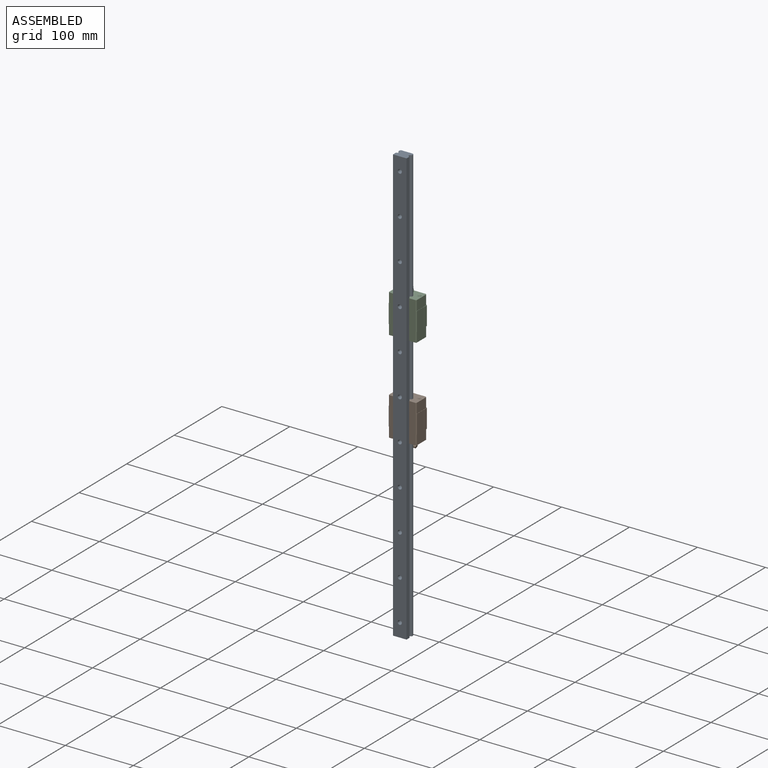
[diagram: assembled view]
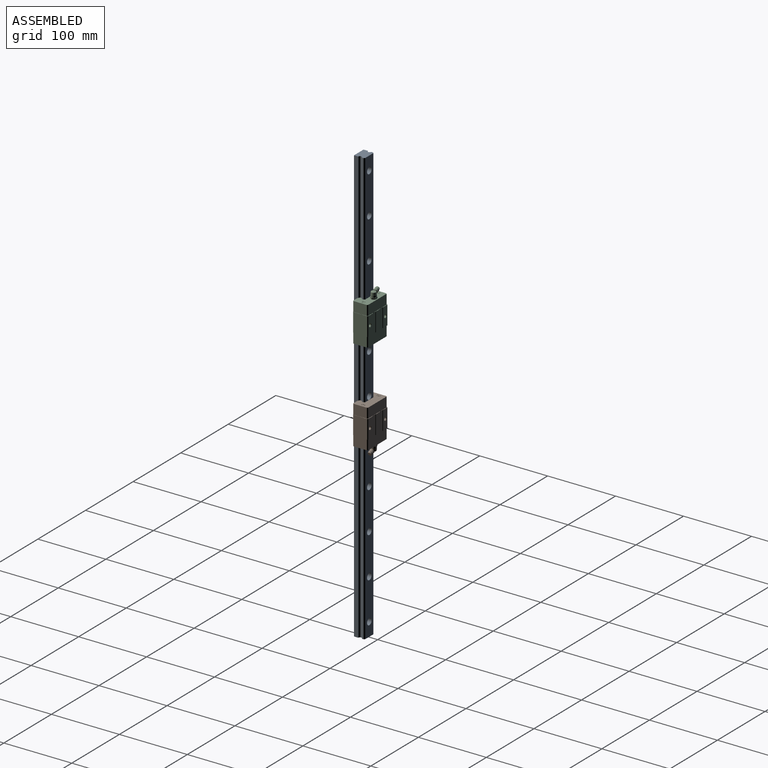
[diagram: assembled view, second angle]
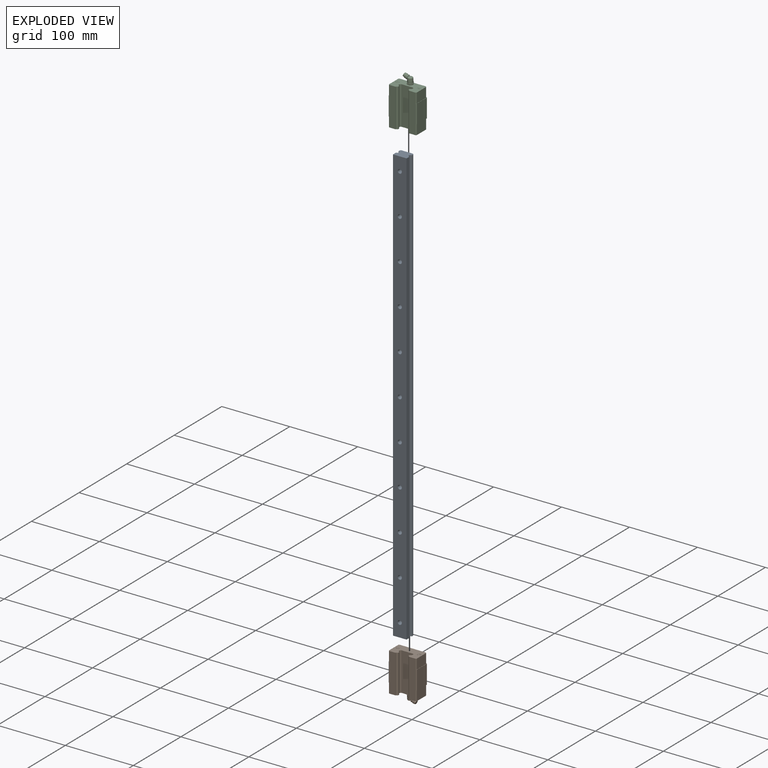
[diagram: exploded view]
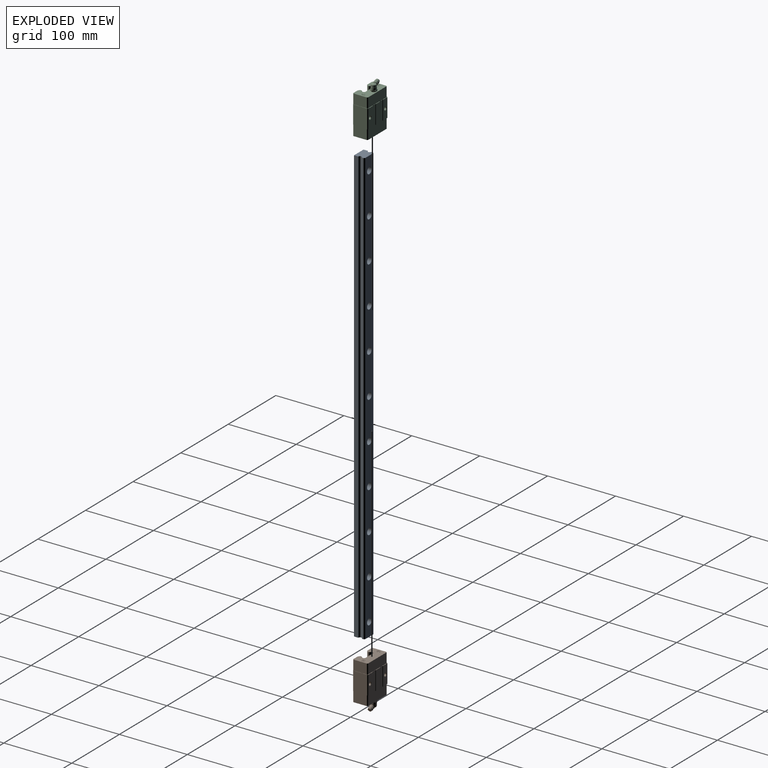
[diagram: exploded view, second angle]
ASSEMBLY  parts=3 mates=4
PART A: 47 faces, bbox 20x15.5x640 mm
  f0: cylinder r=4.75mm len=9.5mm, axis (0,-1,0), area 253.7mm2, adj f13,f18
  f1: cylinder r=3mm len=7mm, axis (0,-1,0), area 131.9mm2, adj f17,f25
  f2: cylinder r=3mm len=7mm, axis (0,-1,0), area 131.9mm2, adj f13,f17
  f3: cylinder r=3mm len=7mm, axis (0,-1,0), area 131.9mm2, adj f17,f27
  f4: cylinder r=4.75mm len=9.5mm, axis (0,-1,0), area 253.7mm2, adj f18,f27
  f5: cylinder r=3mm len=7mm, axis (0,-1,0), area 131.9mm2, adj f14,f17
  f6: cylinder r=4.75mm len=9.5mm, axis (0,-1,0), area 253.7mm2, adj f18,f31
  f7: cylinder r=3mm len=7mm, axis (0,-1,0), area 131.9mm2, adj f17,f30
  f8: cylinder r=2.5mm len=640mm, axis (0,0,1), area 4411.5mm2, adj f29,f36,f37,f45
  f9: cylinder r=4.75mm len=9.5mm, axis (0,-1,0), area 253.7mm2, adj f18,f46
  f10: plane 640x6.18mm, normal (-1,0,0), area 3955.2mm2, adj f17,f37,f40,f45
  f11: plane 640x1.46mm, normal (-0.71,0.71,0), area 1318.4mm2, adj f18,f37,f41,f45
  f12: cylinder r=3mm len=7mm, axis (0,-1,0), area 131.9mm2, adj f17,f24
  f13: plane 9.5x9.5mm, normal (0,1,0), area 42.6mm2, adj f0,f2
  f14: plane 9.5x9.5mm, normal (0,1,0), area 42.6mm2, adj f5,f35
  f15: cylinder r=3mm len=7mm, axis (0,-1,0), area 131.9mm2, adj f17,f38
  f16: cylinder r=4.75mm len=9.5mm, axis (0,-1,0), area 253.7mm2, adj f18,f38
  f17: plane 640x20mm, normal (0,-1,0), area 12489mm2, adj f1,f2,f3,f5,f7,f10,f12,f15
  f18: plane 640x17.09mm, normal (0,1,0), area 10155.8mm2, adj f0,f4,f6,f9,f11,f16,f23,f28
  f19: cylinder r=3mm len=7mm, axis (0,-1,0), area 131.9mm2, adj f17,f26
  f20: plane 9.5x9.5mm, normal (0,1,0), area 42.6mm2, adj f32,f33
  f21: cylinder r=3mm len=7mm, axis (0,-1,0), area 131.9mm2, adj f17,f46
  f22: cylinder r=3mm len=7mm, axis (0,-1,0), area 131.9mm2, adj f17,f31
  f23: plane 640x1.46mm, normal (0.71,0.71,0), area 1318.4mm2, adj f18,f37,f44,f45
  f24: plane 9.5x9.5mm, normal (0,1,0), area 42.6mm2, adj f12,f28
  f25: plane 9.5x9.5mm, normal (0,1,0), area 42.6mm2, adj f1,f42
  f26: plane 9.5x9.5mm, normal (0,1,0), area 42.6mm2, adj f19,f34
  f27: plane 9.5x9.5mm, normal (0,1,0), area 42.6mm2, adj f3,f4
  f28: cylinder r=4.75mm len=9.5mm, axis (0,-1,0), area 253.7mm2, adj f18,f24
  f29: cylinder r=1.5mm len=640mm, axis (0,0,1), area 1138.9mm2, adj f8,f37,f44,f45
  f30: plane 9.5x9.5mm, normal (0,1,0), area 42.6mm2, adj f7,f43
  f31: plane 9.5x9.5mm, normal (0,1,0), area 42.6mm2, adj f6,f22
  f32: cylinder r=3mm len=7mm, axis (0,-1,0), area 131.9mm2, adj f17,f20
  f33: cylinder r=4.75mm len=9.5mm, axis (0,-1,0), area 253.7mm2, adj f18,f20
  f34: cylinder r=4.75mm len=9.5mm, axis (0,-1,0), area 253.7mm2, adj f18,f26
  f35: cylinder r=4.75mm len=9.5mm, axis (0,-1,0), area 253.7mm2, adj f14,f18
  f36: plane 640x6.18mm, normal (1,0,0), area 3955.2mm2, adj f8,f17,f37,f45
  f37: plane 20x15.5mm, normal (0,0,-1), area 287.8mm2, adj f8,f10,f11,f17,f18,f23,f29,f36
  f38: plane 9.5x9.5mm, normal (0,1,0), area 42.6mm2, adj f15,f16
  f39: cylinder r=1.5mm len=640mm, axis (0,0,1), area 1138.9mm2, adj f37,f40,f41,f45
  f40: cylinder r=2.5mm len=640mm, axis (0,0,1), area 4411.5mm2, adj f10,f37,f39,f45
  f41: plane 640x1.66mm, normal (-1,0,0), area 1059.4mm2, adj f11,f37,f39,f45
  f42: cylinder r=4.75mm len=9.5mm, axis (0,-1,0), area 253.7mm2, adj f18,f25
  f43: cylinder r=4.75mm len=9.5mm, axis (0,-1,0), area 253.7mm2, adj f18,f30
  f44: plane 640x1.66mm, normal (1,0,0), area 1059.4mm2, adj f23,f29,f37,f45
  f45: plane 20x15.5mm, normal (0,0,1), area 287.8mm2, adj f8,f10,f11,f17,f18,f23,f29,f36
  f46: plane 9.5x9.5mm, normal (0,1,0), area 42.6mm2, adj f9,f21
PART B: 153 faces, bbox 42.4x22.9x70 mm
  f0: cone r=3.34mm half-angle=47.5deg, axis (-0.92,0,0.39), area 20.7mm2, adj f1,f2,f3,f4,f91
  f1: torus R=2.68mm, axis (0,0,1), area 20.7mm2, adj f0,f2,f4
  f2: cone r=3.88mm half-angle=3deg, axis (0,0,-1), area 78.3mm2, adj f0,f1,f99
  f3: cone r=2.83mm half-angle=18.6deg, axis (0.92,0,-0.39), area 30.7mm2, adj f0,f5
  f4: cone r=2.9mm half-angle=77deg, axis (0,0,-1), area 24.1mm2, adj f0,f1,f91
  f5: cone r=3.26mm half-angle=15.8deg, axis (-0.92,0,0.39), area 29.9mm2, adj f3,f6
  f6: cone r=2.5mm half-angle=14.2deg, axis (0.92,0,-0.39), area 56mm2, adj f5,f90
  f7: cylinder r=1.54mm len=0.4mm, axis (0,0,1), area 0.1mm2, adj f32,f71,f81,f82
  f8: cylinder r=1.54mm len=0.4mm, axis (0,0,1), area 0.1mm2, adj f33,f59,f69,f70
  f9: cylinder r=1.54mm len=0.4mm, axis (0,0,-1), area 0.1mm2, adj f52,f53,f58,f100
  f10: cylinder r=1.54mm len=0.4mm, axis (0,0,-1), area 0.1mm2, adj f46,f106,f120,f133
  f11: cylinder r=2.2mm len=4.4mm, axis (0,0,1), area 34.6mm2, adj f32,f34
  f12: cylinder r=2.2mm len=4.4mm, axis (0,0,1), area 34.6mm2, adj f33,f35
  f13: cylinder r=2.2mm len=4.4mm, axis (0,0,-1), area 34.6mm2, adj f100,f107
  f14: cylinder r=2.2mm len=4.4mm, axis (0,0,-1), area 34.6mm2, adj f102,f133
  f15: cylinder r=2.4mm len=4.8mm, axis (0,0,-1), area 37.7mm2, adj f31,f107
  f16: cylinder r=2.4mm len=4.8mm, axis (0,0,-1), area 37.7mm2, adj f31,f102
  f17: cylinder r=2.4mm len=4.8mm, axis (0,0,1), area 37.7mm2, adj f34,f36
  f18: cylinder r=2.4mm len=4.8mm, axis (0,0,1), area 37.7mm2, adj f35,f36
  f19: cone r=1732.05mm half-angle=60deg, axis (0,1,0), area 15.5mm2, adj f20
  f20: cylinder r=2.07mm len=10.37mm, axis (0,-1,0), area 134.7mm2, adj f19,f21
  f21: cone r=2.07mm half-angle=45deg, axis (0,1,0), area 8.8mm2, adj f20,f37
  f22: cone r=1732.05mm half-angle=60deg, axis (0,1,0), area 15.5mm2, adj f23
  f23: cylinder r=2.07mm len=10.37mm, axis (0,-1,0), area 134.7mm2, adj f22,f24
  f24: cone r=2.07mm half-angle=45deg, axis (0,1,0), area 8.8mm2, adj f23,f38
  f25: cylinder r=2.5mm len=56.6mm, axis (0,0,1), area 390.1mm2, adj f31,f36,f109,f136
  f26: cone r=4mm half-angle=45deg, axis (0,0,1), area 1.7mm2, adj f31,f87,f88
  f27: cone r=4mm half-angle=45deg, axis (0,0,1), area 1.7mm2, adj f31,f84,f85
  f28: cone r=4mm half-angle=45deg, axis (0,0,1), area 1.7mm2, adj f31,f85,f86
  f29: cone r=4mm half-angle=45deg, axis (0,0,1), area 1.7mm2, adj f31,f86,f87
  f30: cone r=4mm half-angle=45deg, axis (0,0,1), area 1.7mm2, adj f31,f84,f89
  f31: plane 40.9x21.8mm, normal (0,0,1), area 625.4mm2, adj f15,f16,f25,f26,f27,f28,f29,f30
  f32: plane 4.4x4.4mm, normal (0,0,-1), area 12.9mm2, adj f7,f11,f71,f72,f73,f74,f75,f76
  f33: plane 4.4x4.4mm, normal (0,0,-1), area 12.9mm2, adj f8,f12,f59,f60,f61,f62,f63,f64
  f34: plane 4.8x4.8mm, normal (0,0,-1), area 2.9mm2, adj f11,f17
  f35: plane 4.8x4.8mm, normal (0,0,-1), area 2.9mm2, adj f12,f18
  f36: plane 40.9x21.8mm, normal (0,0,-1), area 675.7mm2, adj f17,f18,f25,f104,f105,f108,f109,f110
  f37: plane 27.6x9mm, normal (0,1,0), area 228.8mm2, adj f21,f39,f40,f139,f143
  f38: plane 27.6x9mm, normal (0,1,0), area 228.8mm2, adj f24,f39,f127,f139,f144
  f39: plane 42x22.5mm, normal (0,0,1), area 39.4mm2, adj f37,f38,f40,f41,f101,f103,f105,f111
  f40: plane 27.6x1mm, normal (-0.71,0.71,0), area 39mm2, adj f37,f39,f41,f139
  f41: plane 27.6x6.5mm, normal (-1,0,0), area 179.4mm2, adj f39,f40,f139,f148
  f42: plane 1.33x0.2mm, normal (-1,0,0), area 0.3mm2, adj f43,f46,f120,f133
  f43: cylinder r=1.54mm len=0.4mm, axis (0,0,-1), area 0.1mm2, adj f42,f44,f46,f133
  f44: plane 1.33x0.2mm, normal (1,0,0), area 0.3mm2, adj f43,f45,f46,f133
  f45: plane 1.33x0.2mm, normal (0,1,0), area 0.3mm2, adj f44,f46,f115,f133
  f46: plane 3.08x3.08mm, normal (0,0,1), area 2.3mm2, adj f10,f42,f43,f44,f45,f106,f113,f115
  f47: cylinder r=1.54mm len=0.4mm, axis (0,0,-1), area 0.1mm2, adj f48,f57,f58,f100
  f48: plane 1.33x0.2mm, normal (0,-1,0), area 0.3mm2, adj f47,f49,f58,f100
  f49: plane 1.33x0.2mm, normal (1,0,0), area 0.3mm2, adj f48,f50,f58,f100
  f50: cylinder r=1.54mm len=0.4mm, axis (0,0,-1), area 0.1mm2, adj f49,f51,f58,f100
  f51: plane 1.33x0.2mm, normal (-1,0,0), area 0.3mm2, adj f50,f52,f58,f100
  f52: plane 1.33x0.2mm, normal (0,-1,0), area 0.3mm2, adj f9,f51,f58,f100
  f53: plane 1.33x0.2mm, normal (0,1,0), area 0.3mm2, adj f9,f54,f58,f100
  f54: plane 1.33x0.2mm, normal (-1,0,0), area 0.3mm2, adj f53,f55,f58,f100
  f55: cylinder r=1.54mm len=0.4mm, axis (0,0,-1), area 0.1mm2, adj f54,f56,f58,f100
  f56: plane 1.33x0.2mm, normal (1,0,0), area 0.3mm2, adj f55,f57,f58,f100
  f57: plane 1.33x0.2mm, normal (0,1,0), area 0.3mm2, adj f47,f56,f58,f100
  f58: plane 3.08x3.08mm, normal (0,0,1), area 2.3mm2, adj f9,f47,f48,f49,f50,f51,f52,f53
  f59: plane 1.33x0.2mm, normal (0,1,0), area 0.3mm2, adj f8,f33,f60,f70
  f60: plane 1.33x0.2mm, normal (1,0,0), area 0.3mm2, adj f33,f59,f61,f70
  f61: cylinder r=1.54mm len=0.4mm, axis (0,0,1), area 0.1mm2, adj f33,f60,f62,f70
  f62: plane 1.33x0.2mm, normal (-1,0,0), area 0.3mm2, adj f33,f61,f63,f70
  f63: plane 1.33x0.2mm, normal (0,1,0), area 0.3mm2, adj f33,f62,f64,f70
  f64: cylinder r=1.54mm len=0.4mm, axis (0,0,1), area 0.1mm2, adj f33,f63,f65,f70
  f65: plane 1.33x0.2mm, normal (0,-1,0), area 0.3mm2, adj f33,f64,f66,f70
  f66: plane 1.33x0.2mm, normal (-1,0,0), area 0.3mm2, adj f33,f65,f67,f70
  f67: cylinder r=1.54mm len=0.4mm, axis (0,0,1), area 0.1mm2, adj f33,f66,f68,f70
  f68: plane 1.33x0.2mm, normal (1,0,0), area 0.3mm2, adj f33,f67,f69,f70
  f69: plane 1.33x0.2mm, normal (0,-1,0), area 0.3mm2, adj f8,f33,f68,f70
  f70: plane 3.08x3.08mm, normal (0,0,-1), area 2.3mm2, adj f8,f59,f60,f61,f62,f63,f64,f65
  f71: plane 1.33x0.2mm, normal (0,1,0), area 0.3mm2, adj f7,f32,f72,f82
  f72: plane 1.33x0.2mm, normal (1,0,0), area 0.3mm2, adj f32,f71,f73,f82
  f73: cylinder r=1.54mm len=0.4mm, axis (0,0,1), area 0.1mm2, adj f32,f72,f74,f82
  f74: plane 1.33x0.2mm, normal (-1,0,0), area 0.3mm2, adj f32,f73,f75,f82
  f75: plane 1.33x0.2mm, normal (0,1,0), area 0.3mm2, adj f32,f74,f76,f82
  f76: cylinder r=1.54mm len=0.4mm, axis (0,0,1), area 0.1mm2, adj f32,f75,f77,f82
  f77: plane 1.33x0.2mm, normal (0,-1,0), area 0.3mm2, adj f32,f76,f78,f82
  f78: plane 1.33x0.2mm, normal (-1,0,0), area 0.3mm2, adj f32,f77,f79,f82
  f79: cylinder r=1.54mm len=0.4mm, axis (0,0,1), area 0.1mm2, adj f32,f78,f80,f82
  f80: plane 1.33x0.2mm, normal (1,0,0), area 0.3mm2, adj f32,f79,f81,f82
  f81: plane 1.33x0.2mm, normal (0,-1,0), area 0.3mm2, adj f7,f32,f80,f82
  f82: plane 3.08x3.08mm, normal (0,0,-1), area 2.3mm2, adj f7,f71,f72,f73,f74,f75,f76,f77
  f83: cone r=4mm half-angle=45deg, axis (0,0,1), area 1.7mm2, adj f31,f88,f89
  f84: plane 4.37x2.87mm, normal (-0.87,0.5,0), area 10.5mm2, adj f27,f30,f31,f85,f89,f96,f97,f98
  f85: plane 4.37x2.87mm, normal (-0.87,-0.5,0), area 10.5mm2, adj f27,f28,f31,f84,f86,f95,f97,f98
  f86: plane 4.99x2.87mm, normal (0,-1,0), area 10.5mm2, adj f28,f29,f31,f85,f87,f94,f95,f97
  f87: plane 4.37x2.87mm, normal (0.87,-0.5,0), area 10.5mm2, adj f26,f29,f31,f86,f88,f93,f94,f97
  f88: plane 4.37x2.87mm, normal (0.87,0.5,0), area 10.5mm2, adj f26,f31,f83,f87,f89,f92,f93,f97
  f89: plane 4.99x2.87mm, normal (0,1,0), area 10.5mm2, adj f30,f31,f83,f84,f88,f92,f96,f97
  f90: plane 5x4.6mm, normal (-0.92,0,0.39), area 19.6mm2, adj f6
  f91: plane 3.16x0.78mm, normal (0.92,0,-0.39), area 0.7mm2, adj f0,f4
  f92: cone r=4.7mm half-angle=45deg, axis (0,0,-1), area 0.1mm2, adj f88,f89,f97
  f93: cone r=4.7mm half-angle=45deg, axis (0,0,-1), area 0.1mm2, adj f87,f88,f97
  f94: cone r=4.7mm half-angle=45deg, axis (0,0,-1), area 0.1mm2, adj f86,f87,f97
  f95: cone r=4.7mm half-angle=45deg, axis (0,0,-1), area 0.1mm2, adj f85,f86,f97
  f96: cone r=4.7mm half-angle=45deg, axis (0,0,-1), area 0.1mm2, adj f84,f89,f97
  f97: plane 8.8x7.99mm, normal (0,0,1), area 7.6mm2, adj f84,f85,f86,f87,f88,f89,f92,f93
  f98: cone r=4.7mm half-angle=45deg, axis (0,0,-1), area 0.1mm2, adj f84,f85,f97
  f99: cylinder r=3.88mm len=7.75mm, axis (0,0,-1), area 53.6mm2, adj f2,f97
  f100: plane 4.4x4.4mm, normal (0,0,1), area 12.9mm2, adj f9,f13,f47,f48,f49,f50,f51,f52
  f101: plane 27.6x1mm, normal (-0.71,-0.71,0), area 38.9mm2, adj f39,f139,f141,f152
  f102: plane 4.8x4.8mm, normal (0,0,1), area 2.9mm2, adj f14,f16
  f103: plane 14.5x1mm, normal (-0.71,-0.71,0), area 20.4mm2, adj f31,f39,f131,f141
  f104: cylinder r=1.5mm len=56.6mm, axis (0,0,1), area 100.7mm2, adj f31,f36,f110,f114
  f105: plane 56.6x9.75mm, normal (0,-1,0), area 543.3mm2, adj f31,f36,f39,f123,f126,f136,f139,f149
  f106: plane 1.33x0.2mm, normal (0,-1,0), area 0.3mm2, adj f10,f46,f128,f133
  f107: plane 4.8x4.8mm, normal (0,0,1), area 2.9mm2, adj f13,f15
  f108: plane 56.6x17.09mm, normal (0,-1,0), area 967.1mm2, adj f31,f36,f129,f142
  f109: cylinder r=1.5mm len=56.6mm, axis (0,0,1), area 100.7mm2, adj f25,f31,f36,f145
  f110: cylinder r=2.5mm len=56.6mm, axis (0,0,1), area 390.1mm2, adj f31,f36,f104,f118
  f111: plane 19.81x14.5mm, normal (1,0,0), area 287.3mm2, adj f31,f39,f126,f138
  f112: plane 38.92x14.5mm, normal (0,1,0), area 564.3mm2, adj f36,f125,f139,f151
  f113: plane 1.33x0.2mm, normal (1,0,0), area 0.3mm2, adj f46,f121,f133,f140
  f114: plane 56.6x1.66mm, normal (1,0,0), area 93.7mm2, adj f31,f36,f104,f129
  f115: cylinder r=1.54mm len=0.4mm, axis (0,0,-1), area 0.1mm2, adj f45,f46,f133,f140
  f116: plane 27.6x0.5mm, normal (0.71,0.71,0), area 19.5mm2, adj f39,f119,f139,f147
  f117: plane 27.6x14mm, normal (1,0,0), area 386.5mm2, adj f39,f134,f139,f149
  f118: plane 56.6x0.68mm, normal (1,0,0), area 38.5mm2, adj f31,f36,f110,f141
  f119: plane 27.6x6mm, normal (0,1,0), area 165.6mm2, adj f39,f116,f127,f139
  f120: plane 1.33x0.2mm, normal (0,1,0), area 0.3mm2, adj f10,f42,f46,f133
  f121: cylinder r=1.54mm len=0.4mm, axis (0,0,-1), area 0.1mm2, adj f46,f113,f128,f133
  f122: plane 14.5x1mm, normal (-0.71,-0.71,0), area 20.4mm2, adj f36,f132,f139,f141
  f123: plane 14.5x1mm, normal (0.71,-0.71,0), area 20.4mm2, adj f36,f105,f139,f146
  f124: plane 27.6x6mm, normal (0,1,0), area 165.6mm2, adj f39,f137,f139,f143
  f125: plane 14.5x0.99mm, normal (0.71,0.71,0), area 20.3mm2, adj f36,f112,f139,f146
  f126: plane 14.5x1mm, normal (0.71,-0.71,0), area 20.4mm2, adj f31,f39,f105,f111
  f127: plane 27.6x0.5mm, normal (-0.71,0.71,0), area 19.5mm2, adj f38,f39,f119,f139
  f128: plane 1.33x0.2mm, normal (-1,0,0), area 0.3mm2, adj f46,f106,f121,f133
  f129: plane 56.6x1.46mm, normal (0.71,-0.71,0), area 116.6mm2, adj f31,f36,f108,f114
  f130: plane 27.6x6.5mm, normal (1,0,0), area 179.4mm2, adj f39,f134,f139,f144
  f131: plane 19.81x14.5mm, normal (-1,0,0), area 287.3mm2, adj f31,f39,f103,f150
  f132: plane 19.81x14.5mm, normal (-1,0,0), area 287.3mm2, adj f36,f122,f139,f151
  f133: plane 4.4x4.4mm, normal (0,0,1), area 12.9mm2, adj f10,f14,f42,f43,f44,f45,f106,f113
  f134: plane 27.6x0.25mm, normal (0,-1,0), area 6.9mm2, adj f39,f117,f130,f139
  f135: plane 38.92x14.5mm, normal (0,1,0), area 564.3mm2, adj f31,f39,f138,f150
  f136: plane 56.6x0.68mm, normal (-1,0,0), area 38.5mm2, adj f25,f31,f36,f105
  f137: plane 27.6x0.5mm, normal (-0.71,0.71,0), area 19.5mm2, adj f39,f124,f139,f147
  f138: plane 14.5x0.99mm, normal (0.71,0.71,0), area 20.3mm2, adj f31,f39,f111,f135
  f139: plane 42x22.5mm, normal (0,0,-1), area 39.4mm2, adj f37,f38,f40,f41,f101,f105,f112,f116
  f140: plane 1.33x0.2mm, normal (0,-1,0), area 0.3mm2, adj f46,f113,f115,f133
  f141: plane 56.6x9.75mm, normal (0,-1,0), area 543.3mm2, adj f31,f36,f39,f101,f103,f118,f122,f139
  f142: plane 56.6x1.46mm, normal (-0.71,-0.71,0), area 116.6mm2, adj f31,f36,f108,f145
  f143: plane 27.6x0.5mm, normal (0.71,0.71,0), area 19.5mm2, adj f37,f39,f124,f139
  f144: plane 27.6x1mm, normal (0.71,0.71,0), area 39mm2, adj f38,f39,f130,f139
  f145: plane 56.6x1.66mm, normal (-1,0,0), area 93.7mm2, adj f31,f36,f109,f142
  f146: plane 19.81x14.5mm, normal (1,0,0), area 287.3mm2, adj f36,f123,f125,f139
  f147: plane 27.6x8mm, normal (0,1,0), area 220.8mm2, adj f39,f116,f137,f139
  f148: plane 27.6x0.25mm, normal (0,-1,0), area 6.9mm2, adj f39,f41,f139,f152
  f149: plane 27.6x1mm, normal (0.71,-0.71,0), area 38.9mm2, adj f39,f105,f117,f139
  f150: plane 14.5x0.99mm, normal (-0.71,0.71,0), area 20.3mm2, adj f31,f39,f131,f135
  f151: plane 14.5x0.99mm, normal (-0.71,0.71,0), area 20.3mm2, adj f36,f112,f132,f139
  f152: plane 27.6x14mm, normal (-1,0,0), area 386.5mm2, adj f39,f101,f139,f148
PART C: same geometry as B
PLACE A t=(-17.8,-0.13,0)mm
PLACE B rot(axis=(0,1,0),180deg) t=(-17.8,5.37,-33.11)mm
PLACE C t=(-17.8,5.37,103.55)mm
MATE cylindrical B.f110 <-> A.f8  axis (0,0,-1) through (-7.8,8.55,-61.41)mm
MATE planar B.f108 <-> A.f6  axis (0,-1,0) through (-17.8,15.37,-33.11)mm
MATE cylindrical C.f25 <-> A.f8  axis (0,0,1) through (-7.8,8.55,103.55)mm
MATE planar C.f108 <-> A.f6  axis (0,-1,0) through (-17.8,15.37,103.55)mm
